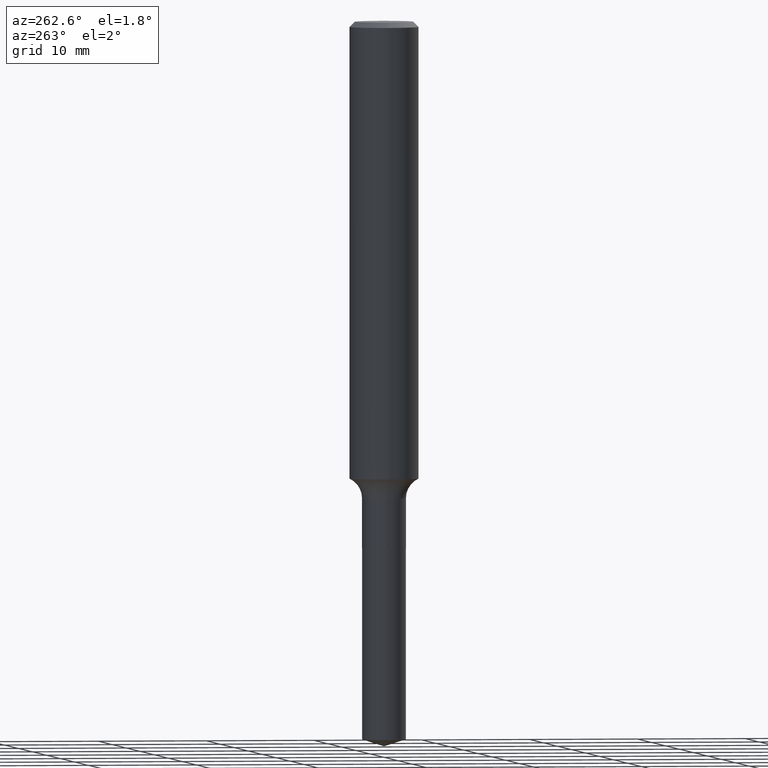
[diagram: clean part render]
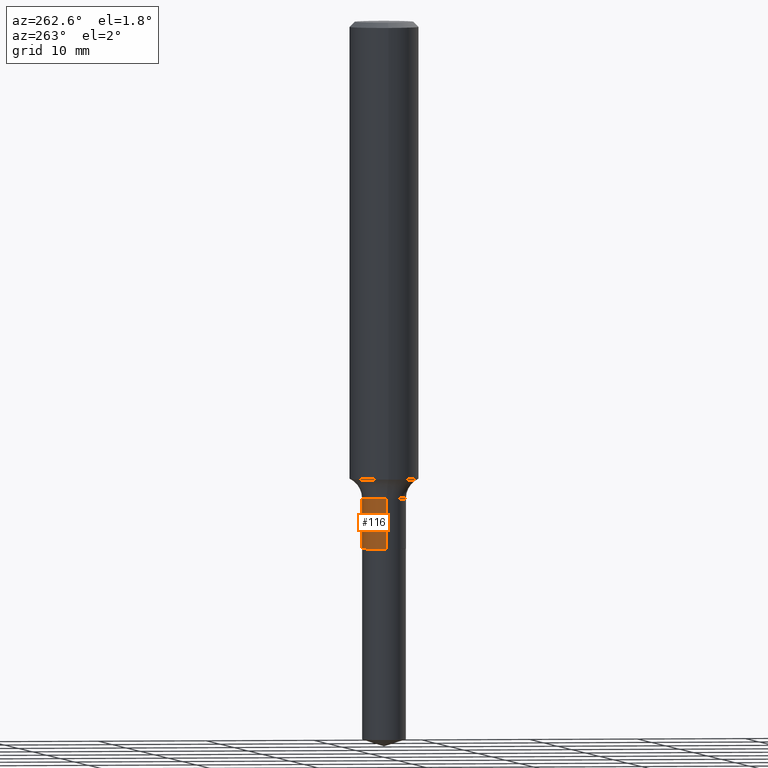
[diagram: same view with one face highlighted and labeled with its STEP entity id]
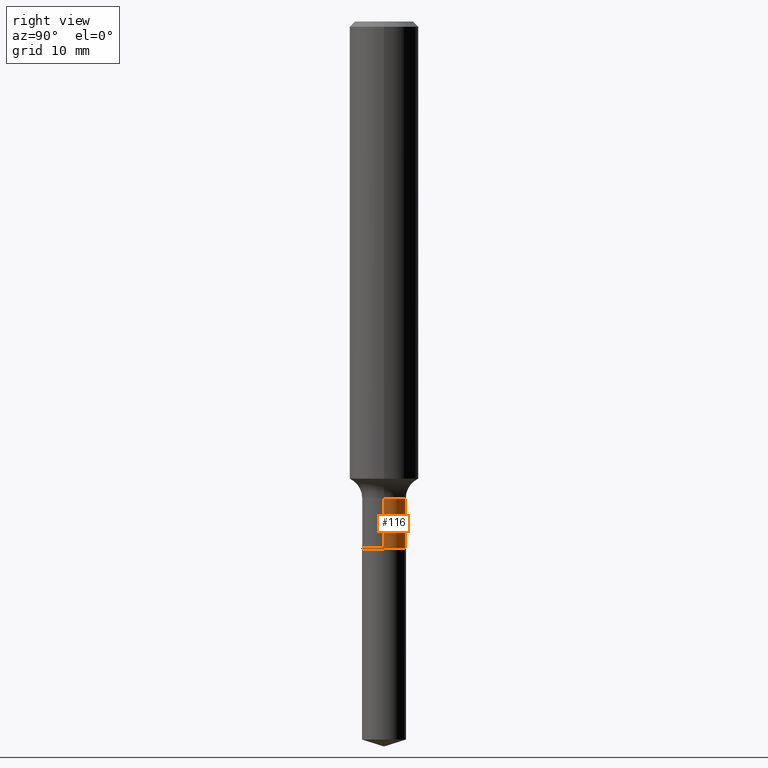
[diagram: same view with one face highlighted and labeled with its STEP entity id]
A machine part, auxiliary view. The second image highlights one B-rep face of the part: STEP entity #116.
A second angle (right view) of the same face is appended — the face is thin or edge-on in the first view.
In plain terms, the highlighted cylindrical surface (edge-blend (fillet) strip) has radius 2.0193 mm, axis along (-0, 0, 1).
Its self-contained STEP definition (entity closure, byte-faithful):
#16 = DIRECTION ( 'NONE',  ( 1.000000000000000000, -6.982962677686267499E-15, 0.000000000000000000 ) ) ;
#19 = CIRCLE ( 'NONE', #421, 0.07950000000000000122 ) ;
#23 = CARTESIAN_POINT ( 'NONE',  ( 4.221123706356164008E-29, -6.026645938977152856E-15, -1.726099999999999968 ) ) ;
#32 = LINE ( 'NONE', #485, #326 ) ;
#36 = EDGE_CURVE ( 'NONE', #260, #167, #32, .T. ) ;
#45 = CYLINDRICAL_SURFACE ( 'NONE', #334, 0.07950000000000000122 ) ;
#53 = DIRECTION ( 'NONE',  ( -2.445468806185136597E-29, 3.491481338843145583E-15, 1.000000000000000000 ) ) ;
#79 = CIRCLE ( 'NONE', #187, 0.07949999999999998734 ) ;
#116 = ADVANCED_FACE ( 'NONE', ( #423 ), #45, .T. ) ;
#120 = DIRECTION ( 'NONE',  ( -2.445468806185136877E-29, 3.491481338843145188E-15, 1.000000000000000000 ) ) ;
#132 = ORIENTED_EDGE ( 'NONE', *, *, #338, .F. ) ;
#145 = CARTESIAN_POINT ( 'NONE',  ( 4.667177216604333684E-29, -6.663492135182144179E-15, -1.908500000000000085 ) ) ;
#146 = EDGE_CURVE ( 'NONE', #231, #247, #202, .T. ) ;
#167 = VERTEX_POINT ( 'NONE', #198 ) ;
#187 = AXIS2_PLACEMENT_3D ( 'NONE', #23, #53, #16 ) ;
#198 = CARTESIAN_POINT ( 'NONE',  ( 0.07949999999999998734, -6.581791471853211501E-15, -1.726099999999999968 ) ) ;
#202 = LINE ( 'NONE', #348, #370 ) ;
#229 = DIRECTION ( 'NONE',  ( 1.000000000000000000, -6.982962677686265922E-15, 0.000000000000000000 ) ) ;
#230 = ORIENTED_EDGE ( 'NONE', *, *, #36, .F. ) ;
#231 = VERTEX_POINT ( 'NONE', #268 ) ;
#232 = CARTESIAN_POINT ( 'NONE',  ( 0.000000000000000000, 0.000000000000000000, 0.000000000000000000 ) ) ;
#236 = CARTESIAN_POINT ( 'NONE',  ( -0.07949999999999998734, -5.780187562150368763E-15, -1.726099999999999968 ) ) ;
#245 = ORIENTED_EDGE ( 'NONE', *, *, #146, .T. ) ;
#247 = VERTEX_POINT ( 'NONE', #236 ) ;
#255 = DIRECTION ( 'NONE',  ( -2.445468806185136597E-29, 3.491481338843145583E-15, 1.000000000000000000 ) ) ;
#260 = VERTEX_POINT ( 'NONE', #360 ) ;
#268 = CARTESIAN_POINT ( 'NONE',  ( -0.07950000000000000122, -5.780187562150368763E-15, -1.908500000000000085 ) ) ;
#281 = EDGE_LOOP ( 'NONE', ( #471, #245, #132, #230 ) ) ;
#326 = VECTOR ( 'NONE', #491, 39.37007874015748143 ) ;
#334 = AXIS2_PLACEMENT_3D ( 'NONE', #232, #464, #385 ) ;
#338 = EDGE_CURVE ( 'NONE', #167, #247, #79, .T. ) ;
#348 = CARTESIAN_POINT ( 'NONE',  ( -0.07950000000000000122, 5.648814749292796564E-16, -3.910553396752650127E-30 ) ) ;
#360 = CARTESIAN_POINT ( 'NONE',  ( 0.07950000000000000122, -7.218637668058202036E-15, -1.908500000000000085 ) ) ;
#370 = VECTOR ( 'NONE', #120, 39.37007874015748143 ) ;
#385 = DIRECTION ( 'NONE',  ( 1.000000000000000000, -6.982962677686267499E-15, 4.876176775795935793E-29 ) ) ;
#421 = AXIS2_PLACEMENT_3D ( 'NONE', #145, #255, #229 ) ;
#423 = FACE_OUTER_BOUND ( 'NONE', #281, .T. ) ;
#444 = EDGE_CURVE ( 'NONE', #260, #231, #19, .T. ) ;
#464 = DIRECTION ( 'NONE',  ( -2.445468806185136597E-29, 3.491481338843145583E-15, 1.000000000000000000 ) ) ;
#471 = ORIENTED_EDGE ( 'NONE', *, *, #444, .T. ) ;
#485 = CARTESIAN_POINT ( 'NONE',  ( 0.07950000000000000122, -5.551455328760582508E-16, 3.876560536757768871E-30 ) ) ;
#491 = DIRECTION ( 'NONE',  ( -2.445468806185136877E-29, 3.491481338843145188E-15, 1.000000000000000000 ) ) ;